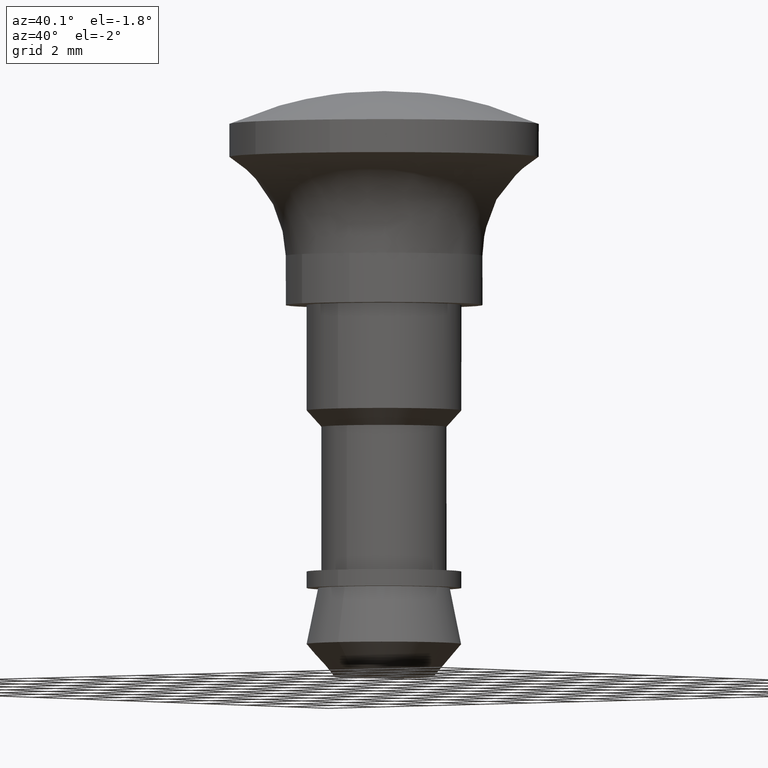
[diagram: clean part render]
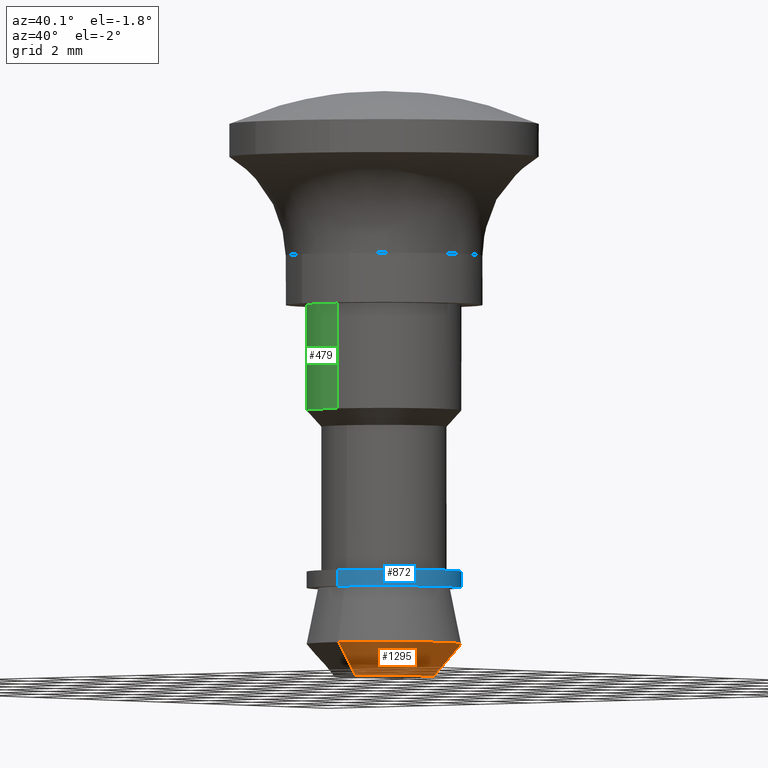
[diagram: same view with three faces highlighted in distinct colors, each labeled with its STEP entity id]
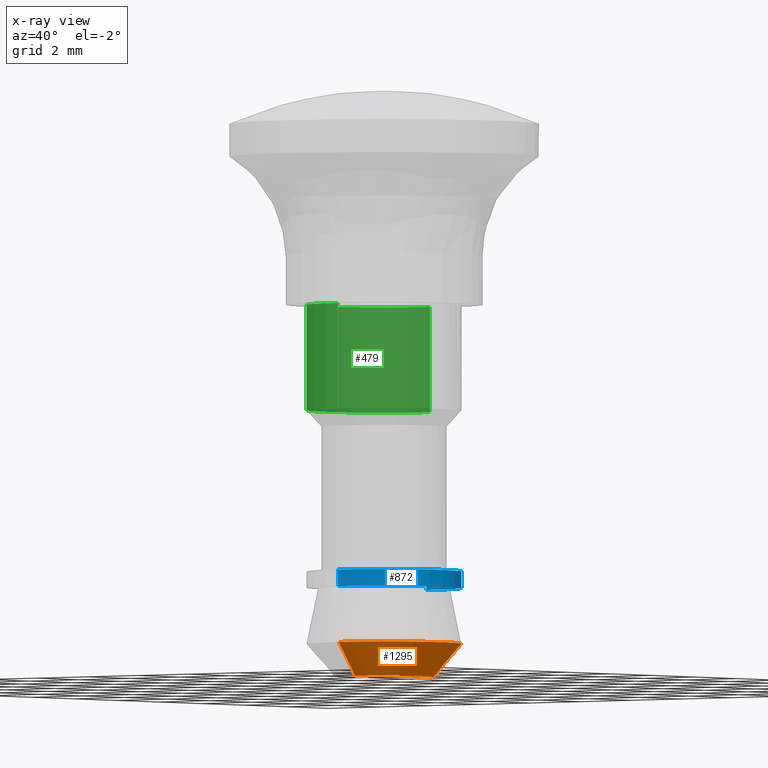
[diagram: x-ray of the same camera — body ghosted, the three highlighted faces saturated]
A machine part, auxiliary view with three faces highlighted in distinct colors.
The next image is the same camera in x-ray (body ghosted, the three faces saturated) — at least one of them is partly hidden behind the body in this view.
Their STEP definitions:

[orange] entity #1295 — the highlighted face is a freeform B-spline surface patch.
#974=CARTESIAN_POINT('',(0.268136562160147,2.334652604572247,-10.300000000003150));
#975=VERTEX_POINT('',#974);
#976=CARTESIAN_POINT('',(2.350000000000000,0.0,-10.300000000000001));
#977=VERTEX_POINT('',#976);
#978=CARTESIAN_POINT('',(0.268136562160147,2.334652604572247,-10.300000000003145));
#979=CARTESIAN_POINT('',(2.350000000000000,2.095549063402899,-10.300000000000001));
#980=CARTESIAN_POINT('',(2.350000000000000,0.0,-10.300000000000001));
#988=(BOUNDED_CURVE()B_SPLINE_CURVE(2,(#978,#979,#980),.UNSPECIFIED.,.F.,.U.)B_SPLINE_CURVE_WITH_KNOTS((3,3),(0.269767755879542,0.500000000000000),.UNSPECIFIED.)CURVE()GEOMETRIC_REPRESENTATION_ITEM()RATIONAL_B_SPLINE_CURVE((0.957343736454879,0.730266147779657,1.0))REPRESENTATION_ITEM(''));
#989=EDGE_CURVE('',#975,#977,#988,.T.);
#1035=CARTESIAN_POINT('',(0.184378462736451,-2.342755330924158,-10.300000511055121));
#1036=VERTEX_POINT('',#1035);
#1050=CARTESIAN_POINT('',(2.350000000000000,0.0,-10.300000000000001));
#1051=CARTESIAN_POINT('',(2.350000000000000,-2.172318358820623,-10.300000000000001));
#1052=CARTESIAN_POINT('',(0.184378462736451,-2.342755330924157,-10.300000511055124));
#1060=(BOUNDED_CURVE()B_SPLINE_CURVE(2,(#1050,#1051,#1052),.UNSPECIFIED.,.F.,.U.)B_SPLINE_CURVE_WITH_KNOTS((3,3),(0.500000000000000,0.736331355971056),.UNSPECIFIED.)CURVE()GEOMETRIC_REPRESENTATION_ITEM()RATIONAL_B_SPLINE_CURVE((1.0,0.723120593772359,0.969723471658631))REPRESENTATION_ITEM(''));
#1061=EDGE_CURVE('',#977,#1036,#1060,.T.);
#1088=CARTESIAN_POINT('',(-0.184378462736451,2.342755330924159,-10.300000511055130));
#1089=VERTEX_POINT('',#1088);
#1090=CARTESIAN_POINT('',(-0.184378462736451,2.342755330924160,-10.300000511055126));
#1091=CARTESIAN_POINT('',(-0.092331371575623,2.350000000000000,-10.300000000000002));
#1092=CARTESIAN_POINT('',(0.0,2.350000000000000,-10.300000000000001));
#1093=CARTESIAN_POINT('',(0.134507502329861,2.350000000000001,-10.299999999999999));
#1094=CARTESIAN_POINT('',(0.268136562160147,2.334652604572246,-10.300000000003145));
#1102=(BOUNDED_CURVE()B_SPLINE_CURVE(2,(#1090,#1091,#1092,#1093,#1094),.UNSPECIFIED.,.F.,.U.)B_SPLINE_CURVE_WITH_KNOTS((3,2,3),(0.236331355971056,0.250000000000000,0.269767755879541),.UNSPECIFIED.)CURVE()GEOMETRIC_REPRESENTATION_ITEM()RATIONAL_B_SPLINE_CURVE((0.969723471658631,0.983986187414189,1.0,0.976840633406890,0.957343736454880))REPRESENTATION_ITEM(''));
#1103=EDGE_CURVE('',#1089,#975,#1102,.T.);
#1191=CARTESIAN_POINT('',(-0.117680797743667,1.495276308869081,-11.299999999991091));
#1192=VERTEX_POINT('',#1191);
#1193=CARTESIAN_POINT('',(-0.117680797743667,1.495276308869081,-11.299999999991091));
#1194=CARTESIAN_POINT('',(-0.184378462736451,2.342755330924159,-10.300000511055130));
#1195=QUASI_UNIFORM_CURVE('',1,(#1193,#1194),.UNSPECIFIED.,.F.,.U.);
#1196=EDGE_CURVE('',#1192,#1089,#1195,.T.);
#1213=CARTESIAN_POINT('',(0.117680797743667,-1.495276308869082,-11.299999999991091));
#1214=VERTEX_POINT('',#1213);
#1230=CARTESIAN_POINT('',(0.117680797743667,-1.495276308869082,-11.299999999991091));
#1231=CARTESIAN_POINT('',(0.184378462736451,-2.342755330924158,-10.300000511055121));
#1232=QUASI_UNIFORM_CURVE('',1,(#1230,#1231),.UNSPECIFIED.,.F.,.U.);
#1233=EDGE_CURVE('',#1214,#1036,#1232,.T.);
#1240=CARTESIAN_POINT('',(0.116013345750239,-1.474089323231153,-11.324999999999999));
#1241=CARTESIAN_POINT('',(1.590102668981393,-1.358075977480914,-11.325000000000001));
#1242=CARTESIAN_POINT('',(1.474089323231153,0.116013345750239,-11.324999999999999));
#1243=CARTESIAN_POINT('',(1.358075977480914,1.590102668981393,-11.325000000000001));
#1244=CARTESIAN_POINT('',(-0.116013345750239,1.474089323231153,-11.324999999999999));
#1245=CARTESIAN_POINT('',(0.186088013190692,-2.364472394548892,-10.274374999999999));
#1246=CARTESIAN_POINT('',(2.550560407739583,-2.178384381358199,-10.274374999999999));
#1247=CARTESIAN_POINT('',(2.364472394548892,0.186088013190692,-10.274374999999999));
#1248=CARTESIAN_POINT('',(2.178384381358199,2.550560407739583,-10.274374999999999));
#1249=CARTESIAN_POINT('',(-0.186088013190692,2.364472394548892,-10.274374999999999));
#1257=(BOUNDED_SURFACE()B_SPLINE_SURFACE(2,1,((#1240,#1245),(#1241,#1246),(#1242,#1247),(#1243,#1248),(#1244,#1249)),.UNSPECIFIED.,.F.,.F.,.U.)B_SPLINE_SURFACE_WITH_KNOTS((3,2,3),(2,2),(0.0,3.929700088617862,7.859400177235723),(0.0,1.0),.UNSPECIFIED.)GEOMETRIC_REPRESENTATION_ITEM()RATIONAL_B_SPLINE_SURFACE(((1.0,1.0),(0.707106781186548,0.707106781186548),(1.0,1.0),(0.707106781186548,0.707106781186548),(1.0,1.0)))REPRESENTATION_ITEM('')SURFACE());
#1258=ORIENTED_EDGE('',*,*,#1103,.T.);
#1259=ORIENTED_EDGE('',*,*,#989,.T.);
#1260=ORIENTED_EDGE('',*,*,#1061,.T.);
#1261=ORIENTED_EDGE('',*,*,#1233,.F.);
#1262=CARTESIAN_POINT('',(1.499900000000000,0.0,-11.300000000000001));
#1263=VERTEX_POINT('',#1262);
#1264=CARTESIAN_POINT('',(1.499900000000000,0.0,-11.300000000000001));
#1265=CARTESIAN_POINT('',(1.499900000000000,-1.386493298324898,-11.299999999999999));
#1266=CARTESIAN_POINT('',(0.117680797743667,-1.495276308869082,-11.299999999991089));
#1274=(BOUNDED_CURVE()B_SPLINE_CURVE(2,(#1264,#1265,#1266),.UNSPECIFIED.,.F.,.U.)B_SPLINE_CURVE_WITH_KNOTS((3,3),(0.500000000000000,0.736331300618808),.UNSPECIFIED.)CURVE()GEOMETRIC_REPRESENTATION_ITEM()RATIONAL_B_SPLINE_CURVE((1.0,0.723120658621550,0.969723356142685))REPRESENTATION_ITEM(''));
#1275=EDGE_CURVE('',#1263,#1214,#1274,.T.);
#1276=ORIENTED_EDGE('',*,*,#1275,.F.);
#1277=CARTESIAN_POINT('',(-0.117680797743667,1.495276308869081,-11.299999999991089));
#1278=CARTESIAN_POINT('',(-0.058931231561964,1.499900000000001,-11.300000000000001));
#1279=CARTESIAN_POINT('',(0.0,1.499900000000000,-11.300000000000001));
#1280=CARTESIAN_POINT('',(1.499899999999999,1.499899999999999,-11.300000000000001));
#1281=CARTESIAN_POINT('',(1.499900000000000,0.0,-11.300000000000001));
#1289=(BOUNDED_CURVE()B_SPLINE_CURVE(2,(#1277,#1278,#1279,#1280,#1281),.UNSPECIFIED.,.F.,.U.)B_SPLINE_CURVE_WITH_KNOTS((3,2,3),(0.236331300618808,0.250000000000000,0.500000000000000),.UNSPECIFIED.)CURVE()GEOMETRIC_REPRESENTATION_ITEM()RATIONAL_B_SPLINE_CURVE((0.969723356142685,0.983986122564997,1.0,0.707106781186547,1.0))REPRESENTATION_ITEM(''));
#1290=EDGE_CURVE('',#1192,#1263,#1289,.T.);
#1291=ORIENTED_EDGE('',*,*,#1290,.F.);
#1292=ORIENTED_EDGE('',*,*,#1196,.T.);
#1293=EDGE_LOOP('',(#1258,#1259,#1260,#1261,#1276,#1291,#1292));
#1294=FACE_OUTER_BOUND('',#1293,.T.);
#1295=ADVANCED_FACE('',(#1294),#1257,.T.);

[blue] entity #872 — the highlighted face is a freeform B-spline surface patch.
#766=CARTESIAN_POINT('',(-0.312011577967671,2.329455952614289,-8.087499999999901));
#767=CARTESIAN_POINT('',(-0.294647190205287,2.331519973316408,-8.087499999999899));
#768=CARTESIAN_POINT('',(-0.210594612299248,2.341510896304224,-8.087499999999899));
#769=CARTESIAN_POINT('',(-0.143464067906914,2.345616776291387,-8.087499999999899));
#770=CARTESIAN_POINT('',(2.202152708384472,2.489080844198301,-8.087499999999899));
#771=CARTESIAN_POINT('',(2.345616776291387,0.143464067906914,-8.087499999999899));
#772=CARTESIAN_POINT('',(2.489080844198301,-2.202152708384472,-8.087499999999899));
#773=CARTESIAN_POINT('',(0.126594628619292,-2.346648555398686,-8.087499999999896));
#774=CARTESIAN_POINT('',(0.109825398328400,-2.347674205461185,-8.087499999999899));
#775=CARTESIAN_POINT('',(-0.312011577967671,2.329455952614289,-8.612812499999892));
#776=CARTESIAN_POINT('',(-0.294647190205287,2.331519973316408,-8.612812499999892));
#777=CARTESIAN_POINT('',(-0.210594612299248,2.341510896304224,-8.612812499999890));
#778=CARTESIAN_POINT('',(-0.143464067906914,2.345616776291387,-8.612812499999890));
#779=CARTESIAN_POINT('',(2.202152708384472,2.489080844198301,-8.612812499999890));
#780=CARTESIAN_POINT('',(2.345616776291387,0.143464067906914,-8.612812499999890));
#781=CARTESIAN_POINT('',(2.489080844198301,-2.202152708384472,-8.612812499999890));
#782=CARTESIAN_POINT('',(0.126594628619292,-2.346648555398686,-8.612812499999887));
#783=CARTESIAN_POINT('',(0.109825398328400,-2.347674205461185,-8.612812499999890));
#791=(BOUNDED_SURFACE()B_SPLINE_SURFACE(2,1,((#766,#775),(#767,#776),(#768,#777),(#769,#778),(#770,#779),(#771,#780),(#772,#781),(#773,#782),(#774,#783)),.UNSPECIFIED.,.F.,.F.,.U.)B_SPLINE_SURFACE_WITH_KNOTS((3,1,2,2,1,3),(2,2),(0.0,0.039714829145061,0.195459128597345,4.089066614904438,7.982674101211529,8.022393845231154),(0.0,1.0),.UNSPECIFIED.)GEOMETRIC_REPRESENTATION_ITEM()RATIONAL_B_SPLINE_SURFACE(((0.972008776326623,0.972008776326623),(0.974757288560875,0.974757288560875),(0.988284271247462,0.988284271247462),(1.0,1.0),(0.707106781186548,0.707106781186548),(1.0,1.0),(0.707106781186548,0.707106781186548),(1.002987883015242,1.002987883015242),(1.005975766030483,1.005975766030483)))REPRESENTATION_ITEM('')SURFACE());
#792=CARTESIAN_POINT('',(-0.277380459254113,2.333572386026193,-8.099999999999900));
#793=VERTEX_POINT('',#792);
#794=CARTESIAN_POINT('',(2.350000000000000,0.0,-8.099999999999900));
#795=VERTEX_POINT('',#794);
#796=CARTESIAN_POINT('',(-0.277380459254113,2.333572386026192,-8.099999999999900));
#797=CARTESIAN_POINT('',(-0.139176689075294,2.350000000000000,-8.099999999999900));
#798=CARTESIAN_POINT('',(0.0,2.350000000000000,-8.099999999999900));
#799=CARTESIAN_POINT('',(2.350000000000001,2.350000000000001,-8.099999999999900));
#800=CARTESIAN_POINT('',(2.350000000000000,0.0,-8.099999999999900));
#808=(BOUNDED_CURVE()B_SPLINE_CURVE(2,(#796,#797,#798,#799,#800),.UNSPECIFIED.,.F.,.U.)B_SPLINE_CURVE_WITH_KNOTS((3,2,3),(0.229562472384298,0.250000000000000,0.500000000000000),.UNSPECIFIED.)CURVE()GEOMETRIC_REPRESENTATION_ITEM()RATIONAL_B_SPLINE_CURVE((0.956026751970401,0.976055947008193,1.0,0.707106781186547,1.0))REPRESENTATION_ITEM(''));
#809=EDGE_CURVE('',#793,#795,#808,.T.);
#810=ORIENTED_EDGE('',*,*,#809,.T.);
#811=CARTESIAN_POINT('',(0.143459872949147,-2.345617032858465,-8.100000000000113));
#812=VERTEX_POINT('',#811);
#813=CARTESIAN_POINT('',(2.350000000000000,0.0,-8.099999999999900));
#814=CARTESIAN_POINT('',(2.350000000000000,-2.210663218215792,-8.099999999999900));
#815=CARTESIAN_POINT('',(0.143459872949147,-2.345617032858465,-8.100000000000113));
#823=(BOUNDED_CURVE()B_SPLINE_CURVE(2,(#813,#814,#815),.UNSPECIFIED.,.F.,.U.)B_SPLINE_CURVE_WITH_KNOTS((3,3),(0.500000000000000,0.739333270828891),.UNSPECIFIED.)CURVE()GEOMETRIC_REPRESENTATION_ITEM()RATIONAL_B_SPLINE_CURVE((1.0,0.719603631751097,0.976072703034611))REPRESENTATION_ITEM(''));
#824=EDGE_CURVE('',#795,#812,#823,.T.);
#825=ORIENTED_EDGE('',*,*,#824,.T.);
#826=CARTESIAN_POINT('',(0.143459923445589,-2.345617029770151,-8.599999999999890));
#827=VERTEX_POINT('',#826);
#828=CARTESIAN_POINT('',(0.143459872949147,-2.345617032858465,-8.100000000000113));
#829=CARTESIAN_POINT('',(0.143459923445589,-2.345617029770151,-8.599999999999890));
#830=QUASI_UNIFORM_CURVE('',1,(#828,#829),.UNSPECIFIED.,.F.,.U.);
#831=EDGE_CURVE('',#812,#827,#830,.T.);
#832=ORIENTED_EDGE('',*,*,#831,.T.);
#833=CARTESIAN_POINT('',(2.350000000000000,0.0,-8.599999999999890));
#834=VERTEX_POINT('',#833);
#835=CARTESIAN_POINT('',(2.350000000000000,0.0,-8.599999999999890));
#836=CARTESIAN_POINT('',(2.350000000000000,-2.210663170535714,-8.599999999999890));
#837=CARTESIAN_POINT('',(0.143459923445589,-2.345617029770151,-8.599999999999890));
#845=(BOUNDED_CURVE()B_SPLINE_CURVE(2,(#835,#836,#837),.UNSPECIFIED.,.F.,.U.)B_SPLINE_CURVE_WITH_KNOTS((3,3),(0.500000000000000,0.739333267114302),.UNSPECIFIED.)CURVE()GEOMETRIC_REPRESENTATION_ITEM()RATIONAL_B_SPLINE_CURVE((1.0,0.719603636103009,0.976072695073518))REPRESENTATION_ITEM(''));
#846=EDGE_CURVE('',#834,#827,#845,.T.);
#847=ORIENTED_EDGE('',*,*,#846,.F.);
#848=CARTESIAN_POINT('',(-0.277380459254113,2.333572386026193,-8.599999999999888));
#849=VERTEX_POINT('',#848);
#850=CARTESIAN_POINT('',(-0.277380459254113,2.333572386026192,-8.599999999999888));
#851=CARTESIAN_POINT('',(-0.139176689075294,2.350000000000000,-8.599999999999891));
#852=CARTESIAN_POINT('',(0.0,2.350000000000000,-8.599999999999890));
#853=CARTESIAN_POINT('',(2.350000000000001,2.350000000000001,-8.599999999999890));
#854=CARTESIAN_POINT('',(2.350000000000000,0.0,-8.599999999999890));
#862=(BOUNDED_CURVE()B_SPLINE_CURVE(2,(#850,#851,#852,#853,#854),.UNSPECIFIED.,.F.,.U.)B_SPLINE_CURVE_WITH_KNOTS((3,2,3),(0.229562472384298,0.250000000000000,0.500000000000000),.UNSPECIFIED.)CURVE()GEOMETRIC_REPRESENTATION_ITEM()RATIONAL_B_SPLINE_CURVE((0.956026751970401,0.976055947008193,1.0,0.707106781186547,1.0))REPRESENTATION_ITEM(''));
#863=EDGE_CURVE('',#849,#834,#862,.T.);
#864=ORIENTED_EDGE('',*,*,#863,.F.);
#865=CARTESIAN_POINT('',(-0.277380459254113,2.333572386026193,-8.099999999999900));
#866=CARTESIAN_POINT('',(-0.277380459254113,2.333572386026193,-8.599999999999888));
#867=QUASI_UNIFORM_CURVE('',1,(#865,#866),.UNSPECIFIED.,.F.,.U.);
#868=EDGE_CURVE('',#793,#849,#867,.T.);
#869=ORIENTED_EDGE('',*,*,#868,.F.);
#870=EDGE_LOOP('',(#810,#825,#832,#847,#864,#869));
#871=FACE_OUTER_BOUND('',#870,.T.);
#872=ADVANCED_FACE('',(#871),#791,.T.);

[green] entity #479 — the highlighted face is a freeform B-spline surface patch.
#282=CARTESIAN_POINT('',(-0.143464067915446,2.345616776290865,-3.200000000000105));
#283=VERTEX_POINT('',#282);
#301=CARTESIAN_POINT('',(-0.143459923445589,2.345617029770151,-7.632783E-017));
#302=VERTEX_POINT('',#301);
#303=CARTESIAN_POINT('',(-0.143459923445589,2.345617029770151,-7.632783E-017));
#304=CARTESIAN_POINT('',(-0.143464067915446,2.345616776290865,-3.200000000000105));
#305=QUASI_UNIFORM_CURVE('',1,(#303,#304),.UNSPECIFIED.,.F.,.U.);
#306=EDGE_CURVE('',#302,#283,#305,.T.);
#325=CARTESIAN_POINT('',(0.143459923445589,-2.345617029770151,-7.632783E-017));
#326=VERTEX_POINT('',#325);
#340=CARTESIAN_POINT('',(0.143463821604614,-2.345616791355855,-3.200000000000099));
#341=VERTEX_POINT('',#340);
#342=CARTESIAN_POINT('',(0.143459923445589,-2.345617029770151,-7.632783E-017));
#343=CARTESIAN_POINT('',(0.143463821604614,-2.345616791355855,-3.200000000000099));
#344=QUASI_UNIFORM_CURVE('',1,(#342,#343),.UNSPECIFIED.,.F.,.U.);
#345=EDGE_CURVE('',#326,#341,#344,.T.);
#393=CARTESIAN_POINT('',(0.176442687967146,-2.343599717479555,0.080000000000003));
#394=CARTESIAN_POINT('',(0.160001532635757,-2.344605301617926,0.080000000000003));
#395=CARTESIAN_POINT('',(-2.202152708384472,-2.489080844198301,0.080000000000003));
#396=CARTESIAN_POINT('',(-2.345616776291387,-0.143464067906914,0.080000000000003));
#397=CARTESIAN_POINT('',(-2.489080844198301,2.202152708384472,0.080000000000003));
#398=CARTESIAN_POINT('',(-0.126924420601143,2.346628384456973,0.080000000000003));
#399=CARTESIAN_POINT('',(-0.110481108078872,2.347634100534787,0.080000000000003));
#400=CARTESIAN_POINT('',(0.176442687967146,-2.343599717479555,-3.282000000000108));
#401=CARTESIAN_POINT('',(0.160001532635757,-2.344605301617926,-3.282000000000110));
#402=CARTESIAN_POINT('',(-2.202152708384472,-2.489080844198301,-3.282000000000109));
#403=CARTESIAN_POINT('',(-2.345616776291387,-0.143464067906914,-3.282000000000108));
#404=CARTESIAN_POINT('',(-2.489080844198301,2.202152708384472,-3.282000000000109));
#405=CARTESIAN_POINT('',(-0.126924420601143,2.346628384456973,-3.282000000000108));
#406=CARTESIAN_POINT('',(-0.110481108078872,2.347634100534787,-3.282000000000108));
#414=(BOUNDED_SURFACE()B_SPLINE_SURFACE(2,1,((#393,#400),(#394,#401),(#395,#402),(#396,#403),(#397,#404),(#398,#405),(#399,#406)),.UNSPECIFIED.,.F.,.F.,.U.)B_SPLINE_SURFACE_WITH_KNOTS((3,1,2,1,3),(2,2),(0.0,0.038935807770022,3.932543294077114,7.826150780384207,7.865091741866127),(0.0,3.362000000000112),.UNSPECIFIED.)GEOMETRIC_REPRESENTATION_ITEM()RATIONAL_B_SPLINE_SURFACE(((1.005857824192587,1.005857824192587),(1.002928912096293,1.002928912096293),(0.707106781186548,0.707106781186548),(1.0,1.0),(0.707106781186548,0.707106781186548),(1.002929299779765,1.002929299779765),(1.005858599559530,1.005858599559530)))REPRESENTATION_ITEM('')SURFACE());
#415=CARTESIAN_POINT('',(-2.350000000000000,0.0,-3.200000000000105));
#416=VERTEX_POINT('',#415);
#417=CARTESIAN_POINT('',(-2.350000000000000,0.0,-3.200000000000105));
#418=CARTESIAN_POINT('',(-2.350000000000000,2.210659257212271,-3.200000000000106));
#419=CARTESIAN_POINT('',(-0.143464067915446,2.345616776290865,-3.200000000000105));
#427=(BOUNDED_CURVE()B_SPLINE_CURVE(2,(#417,#418,#419),.UNSPECIFIED.,.F.,.U.)B_SPLINE_CURVE_WITH_KNOTS((3,3),(0.0,0.239332962240713),.UNSPECIFIED.)CURVE()GEOMETRIC_REPRESENTATION_ITEM()RATIONAL_B_SPLINE_CURVE((1.0,0.719603993284636,0.976072041670512))REPRESENTATION_ITEM(''));
#428=EDGE_CURVE('',#416,#283,#427,.T.);
#429=ORIENTED_EDGE('',*,*,#428,.F.);
#430=CARTESIAN_POINT('',(0.143463821604614,-2.345616791355855,-3.200000000000100));
#431=CARTESIAN_POINT('',(0.071798746758779,-2.350000000000001,-3.200000000000105));
#432=CARTESIAN_POINT('',(0.0,-2.350000000000000,-3.200000000000105));
#433=CARTESIAN_POINT('',(-2.350000000000001,-2.350000000000001,-3.200000000000105));
#434=CARTESIAN_POINT('',(-2.350000000000000,0.0,-3.200000000000105));
#442=(BOUNDED_CURVE()B_SPLINE_CURVE(2,(#430,#431,#432,#433,#434),.UNSPECIFIED.,.F.,.U.)B_SPLINE_CURVE_WITH_KNOTS((3,2,3),(0.739332998478640,0.750000000000000,1.0),.UNSPECIFIED.)CURVE()GEOMETRIC_REPRESENTATION_ITEM()RATIONAL_B_SPLINE_CURVE((0.976072119335300,0.987502830357284,1.0,0.707106781186547,1.0))REPRESENTATION_ITEM(''));
#443=EDGE_CURVE('',#341,#416,#442,.T.);
#444=ORIENTED_EDGE('',*,*,#443,.F.);
#445=ORIENTED_EDGE('',*,*,#345,.F.);
#446=CARTESIAN_POINT('',(-2.350000000000000,0.0,0.0));
#447=VERTEX_POINT('',#446);
#448=CARTESIAN_POINT('',(0.143459923445589,-2.345617029770151,-7.632783E-017));
#449=CARTESIAN_POINT('',(0.071796915710969,-2.350000000000000,0.0));
#450=CARTESIAN_POINT('',(0.0,-2.350000000000000,0.0));
#451=CARTESIAN_POINT('',(-2.350000000000001,-2.350000000000001,0.0));
#452=CARTESIAN_POINT('',(-2.350000000000000,0.0,0.0));
#460=(BOUNDED_CURVE()B_SPLINE_CURVE(2,(#448,#449,#450,#451,#452),.UNSPECIFIED.,.F.,.U.)B_SPLINE_CURVE_WITH_KNOTS((3,2,3),(0.739333267114302,0.750000000000000,1.0),.UNSPECIFIED.)CURVE()GEOMETRIC_REPRESENTATION_ITEM()RATIONAL_B_SPLINE_CURVE((0.976072695073518,0.987503145083538,1.0,0.707106781186547,1.0))REPRESENTATION_ITEM(''));
#461=EDGE_CURVE('',#326,#447,#460,.T.);
#462=ORIENTED_EDGE('',*,*,#461,.T.);
#463=CARTESIAN_POINT('',(-2.350000000000000,0.0,0.0));
#464=CARTESIAN_POINT('',(-2.350000000000000,2.210663170535714,0.0));
#465=CARTESIAN_POINT('',(-0.143459923445589,2.345617029770151,-7.632783E-017));
#473=(BOUNDED_CURVE()B_SPLINE_CURVE(2,(#463,#464,#465),.UNSPECIFIED.,.F.,.U.)B_SPLINE_CURVE_WITH_KNOTS((3,3),(0.0,0.239333267114302),.UNSPECIFIED.)CURVE()GEOMETRIC_REPRESENTATION_ITEM()RATIONAL_B_SPLINE_CURVE((1.0,0.719603636103009,0.976072695073518))REPRESENTATION_ITEM(''));
#474=EDGE_CURVE('',#447,#302,#473,.T.);
#475=ORIENTED_EDGE('',*,*,#474,.T.);
#476=ORIENTED_EDGE('',*,*,#306,.T.);
#477=EDGE_LOOP('',(#429,#444,#445,#462,#475,#476));
#478=FACE_OUTER_BOUND('',#477,.T.);
#479=ADVANCED_FACE('',(#478),#414,.T.);